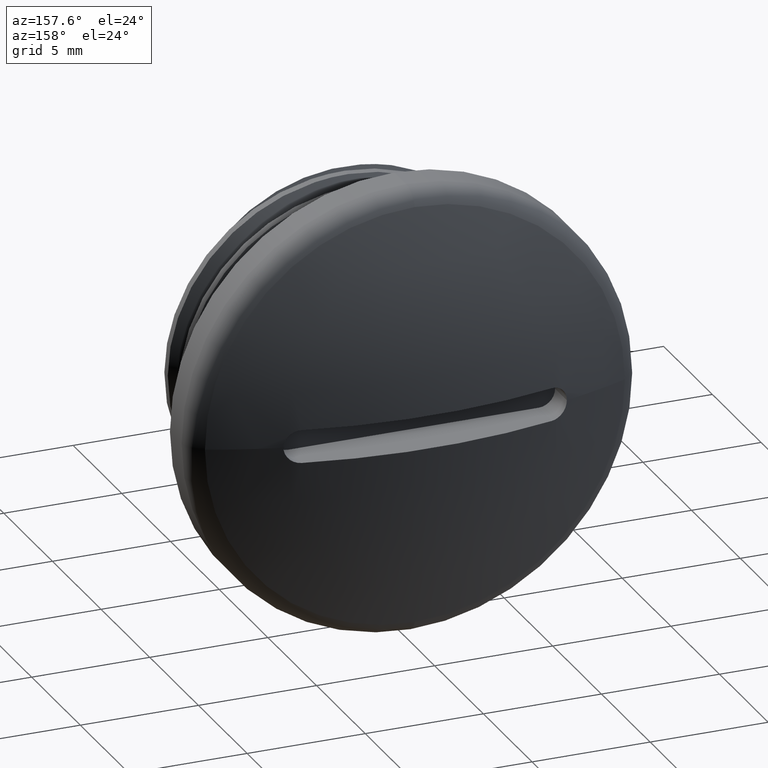
[diagram: clean part render]
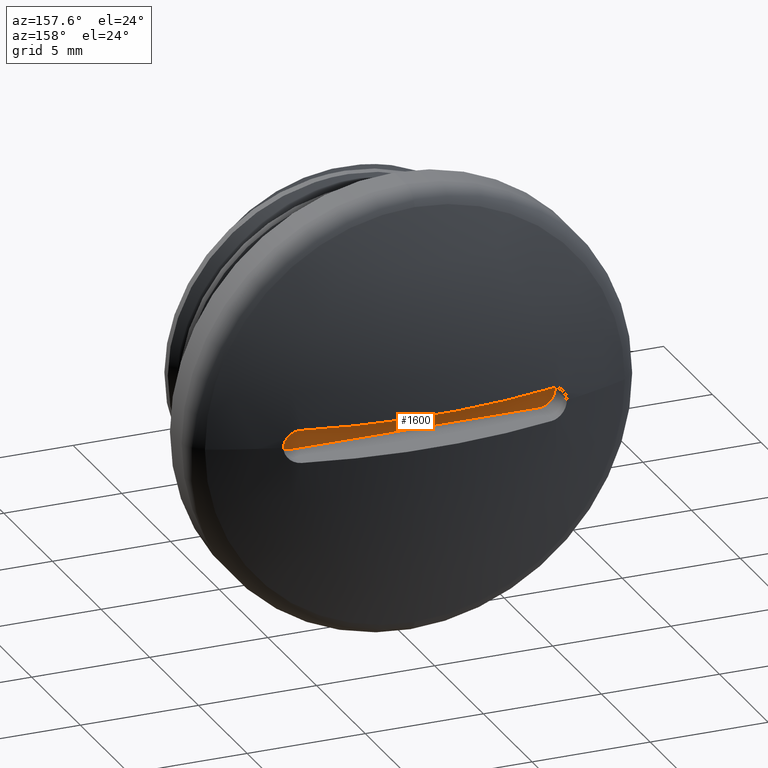
[diagram: same view with one face highlighted and labeled with its STEP entity id]
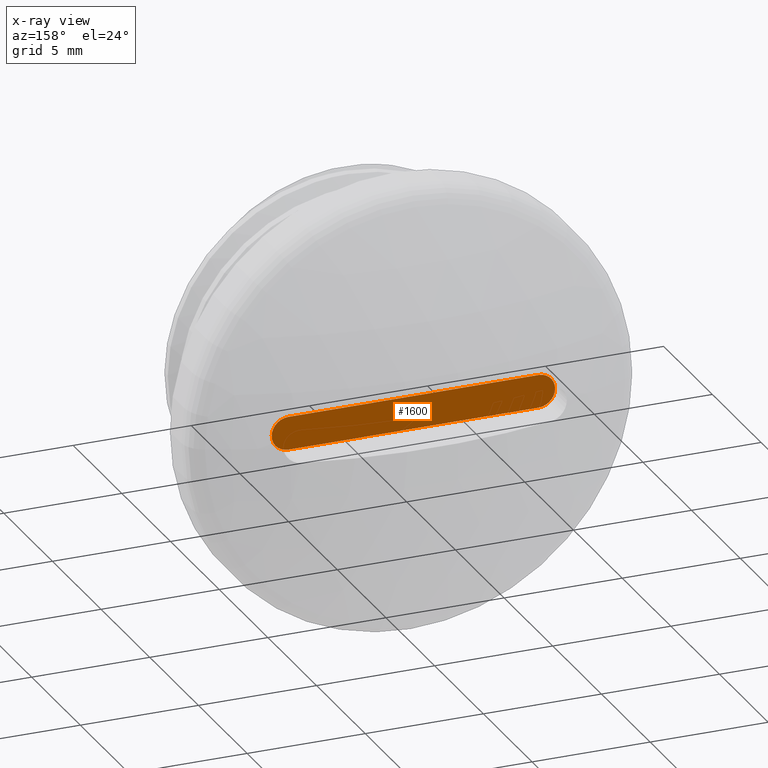
[diagram: x-ray of the same camera — body ghosted, the highlighted face saturated]
A machine part, auxiliary view. The second image highlights one B-rep face of the part: STEP entity #1600.
The next image is the same camera in x-ray: the body ghosted, the highlighted face saturated — about 0% of this face is hidden behind the body in this view.
In plain terms, the highlighted planar face has unit normal (0, -1, 0).
Its self-contained STEP definition (entity closure, byte-faithful):
#22 = VERTEX_POINT ( 'NONE', #62 ) ;
#31 = VERTEX_POINT ( 'NONE', #76 ) ;
#33 = VERTEX_POINT ( 'NONE', #79 ) ;
#41 = VERTEX_POINT ( 'NONE', #77 ) ;
#47 = VERTEX_POINT ( 'NONE', #83 ) ;
#49 = VERTEX_POINT ( 'NONE', #91 ) ;
#62 = CARTESIAN_POINT ( 'NONE',  ( 5.276161009388451900, 7.757954256561429700, -0.6999999999999999600 ) ) ;
#76 = CARTESIAN_POINT ( 'NONE',  ( -5.323838990611549500, 7.757954256561429700, -0.6999999999999999600 ) ) ;
#77 = CARTESIAN_POINT ( 'NONE',  ( -6.023838990611549700, 7.757954256561429700, 0.0000000000000000000 ) ) ;
#79 = CARTESIAN_POINT ( 'NONE',  ( 5.276161009388451900, 7.757954256561429700, 0.6999999999999999600 ) ) ;
#83 = CARTESIAN_POINT ( 'NONE',  ( -5.323838990611549500, 7.757954256561429700, 0.6999999999999999600 ) ) ;
#91 = CARTESIAN_POINT ( 'NONE',  ( 5.976161009388451200, 7.757954256561429700, 0.0000000000000000000 ) ) ;
#165 = CIRCLE ( 'NONE', #168, 0.6999999999999999600 ) ;
#168 = AXIS2_PLACEMENT_3D ( 'NONE', #453, #472, #464 ) ;
#193 = DIRECTION ( 'NONE',  ( 1.000000000000000000, 0.0000000000000000000, 0.0000000000000000000 ) ) ;
#195 = CARTESIAN_POINT ( 'NONE',  ( -6.023838990611549700, 7.757954256561429700, 0.6999999999999999600 ) ) ;
#202 = VECTOR ( 'NONE', #223, 1000.000000000000000 ) ;
#203 = VECTOR ( 'NONE', #193, 1000.000000000000000 ) ;
#223 = DIRECTION ( 'NONE',  ( 1.000000000000000000, 0.0000000000000000000, 0.0000000000000000000 ) ) ;
#225 = LINE ( 'NONE', #227, #202 ) ;
#227 = CARTESIAN_POINT ( 'NONE',  ( -6.023838990611549700, 7.757954256561429700, -0.6999999999999999600 ) ) ;
#339 = EDGE_LOOP ( 'NONE', ( #582, #713, #1200, #698, #1280, #1267 ) ) ;
#453 = CARTESIAN_POINT ( 'NONE',  ( -5.323838990611549500, 7.757954256561429700, 0.0000000000000000000 ) ) ;
#464 = DIRECTION ( 'NONE',  ( 0.0000000000000000000, 0.0000000000000000000, -1.000000000000000000 ) ) ;
#472 = DIRECTION ( 'NONE',  ( -0.0000000000000000000, 1.000000000000000000, -0.0000000000000000000 ) ) ;
#582 = ORIENTED_EDGE ( 'NONE', *, *, #1414, .T. ) ;
#698 = ORIENTED_EDGE ( 'NONE', *, *, #1410, .F. ) ;
#713 = ORIENTED_EDGE ( 'NONE', *, *, #1393, .T. ) ;
#915 = DIRECTION ( 'NONE',  ( 0.0000000000000000000, 0.0000000000000000000, -1.000000000000000000 ) ) ;
#925 = CARTESIAN_POINT ( 'NONE',  ( -5.323838990611549500, 7.757954256561429700, 0.0000000000000000000 ) ) ;
#943 = DIRECTION ( 'NONE',  ( -0.0000000000000000000, 1.000000000000000000, -0.0000000000000000000 ) ) ;
#973 = FACE_OUTER_BOUND ( 'NONE', #339, .T. ) ;
#981 = DIRECTION ( 'NONE',  ( 0.0000000000000000000, -0.0000000000000000000, -1.000000000000000000 ) ) ;
#991 = CARTESIAN_POINT ( 'NONE',  ( -6.023838990611549700, 7.757954256561429700, -0.6999999999999999600 ) ) ;
#1010 = PLANE ( 'NONE',  #1552 ) ;
#1012 = DIRECTION ( 'NONE',  ( 0.0000000000000000000, -1.000000000000000000, 0.0000000000000000000 ) ) ;
#1200 = ORIENTED_EDGE ( 'NONE', *, *, #1392, .T. ) ;
#1267 = ORIENTED_EDGE ( 'NONE', *, *, #1426, .T. ) ;
#1280 = ORIENTED_EDGE ( 'NONE', *, *, #1468, .T. ) ;
#1346 = CARTESIAN_POINT ( 'NONE',  ( 5.276161009388451900, 7.757954256561429700, 0.0000000000000000000 ) ) ;
#1347 = DIRECTION ( 'NONE',  ( -0.0000000000000000000, 1.000000000000000000, -0.0000000000000000000 ) ) ;
#1348 = DIRECTION ( 'NONE',  ( -0.0000000000000000000, 1.000000000000000000, -0.0000000000000000000 ) ) ;
#1349 = DIRECTION ( 'NONE',  ( 0.0000000000000000000, 0.0000000000000000000, -1.000000000000000000 ) ) ;
#1351 = CARTESIAN_POINT ( 'NONE',  ( 5.276161009388451000, 7.757954256561429700, 0.0000000000000000000 ) ) ;
#1357 = DIRECTION ( 'NONE',  ( 0.0000000000000000000, 0.0000000000000000000, -1.000000000000000000 ) ) ;
#1392 = EDGE_CURVE ( 'NONE', #49, #22, #1499, .T. ) ;
#1393 = EDGE_CURVE ( 'NONE', #33, #49, #1487, .T. ) ;
#1410 = EDGE_CURVE ( 'NONE', #31, #22, #225, .T. ) ;
#1414 = EDGE_CURVE ( 'NONE', #47, #33, #1560, .T. ) ;
#1426 = EDGE_CURVE ( 'NONE', #41, #47, #165, .T. ) ;
#1468 = EDGE_CURVE ( 'NONE', #31, #41, #1524, .T. ) ;
#1486 = AXIS2_PLACEMENT_3D ( 'NONE', #1346, #1347, #1349 ) ;
#1487 = CIRCLE ( 'NONE', #1493, 0.6999999999999999600 ) ;
#1493 = AXIS2_PLACEMENT_3D ( 'NONE', #1351, #1348, #1357 ) ;
#1499 = CIRCLE ( 'NONE', #1486, 0.6999999999999999600 ) ;
#1524 = CIRCLE ( 'NONE', #1547, 0.6999999999999999600 ) ;
#1547 = AXIS2_PLACEMENT_3D ( 'NONE', #925, #943, #915 ) ;
#1552 = AXIS2_PLACEMENT_3D ( 'NONE', #991, #1012, #981 ) ;
#1560 = LINE ( 'NONE', #195, #203 ) ;
#1600 = ADVANCED_FACE ( 'NONE', ( #973 ), #1010, .F. ) ;